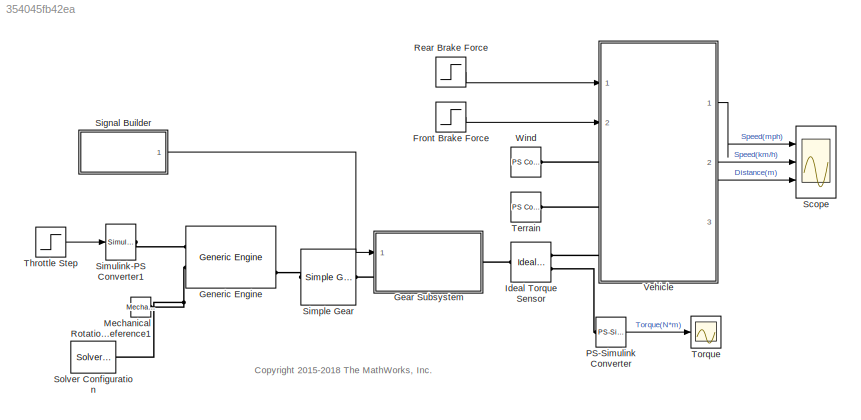
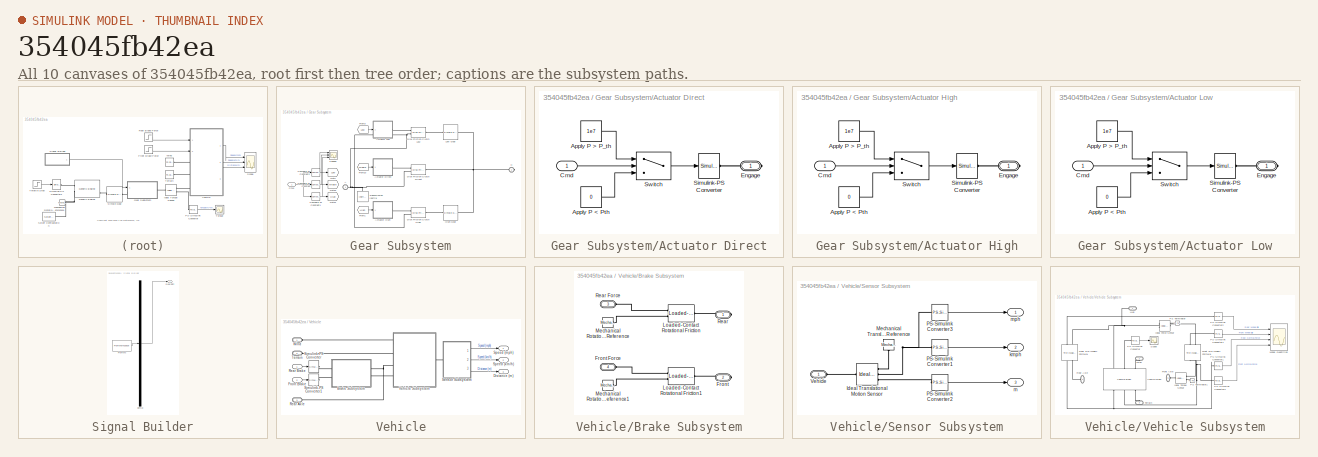
[diagram: thumbnail index - all 10 canvases of the model, root first then tree order]
MODEL slx_354045fb42ea
KIND model
CONFIG AbsTol = 1e-3
CONFIG EnableMultiTasking = on
CONFIG FixedStep = auto
CONFIG MaxStep = auto
CONFIG MinStep = auto
CONFIG PreLoadFcn = car_tire_data\nload engine_data
CONFIG RelTol = 1e-3
CONFIG SampleTimeConstraint = Unconstrained
CONFIG Solver = ode23t
CONFIG SolverName = ode23t
CONFIG StartTime = 0.0
CONFIG StopTime = 100
BLOCK [Step] Front Brake Force
  After = 1000
  AttributesFormatString = %<After> N at %<Time> s
  SampleTime = 0
  Time = 75
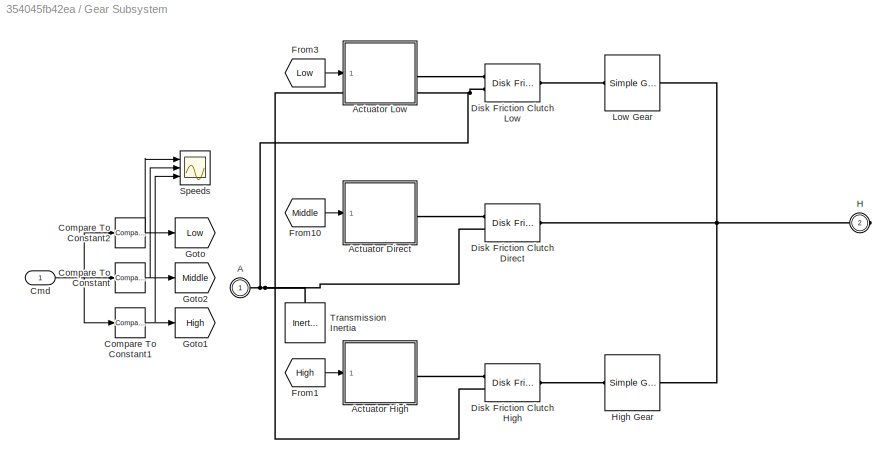
BLOCK [SubSystem] Gear Subsystem
  Ports = [1, 0, 0, 0, 0, 1, 1]
  RequestExecContextInheritance = off
  Variant = off
BLOCK [PMIOPort] Gear Subsystem/A
  Port = 1
  Side = Left
BLOCK [SubSystem] Gear Subsystem/Actuator Direct
  Ports = [1, 0, 0, 0, 0, 0, 1]
  RequestExecContextInheritance = off
  Variant = off
BLOCK [Constant] Gear Subsystem/Actuator Direct/Apply P < Pth
  Value = 0
BLOCK [Constant] Gear Subsystem/Actuator Direct/Apply P > P_th
  Value = 1e7
BLOCK [Inport] Gear Subsystem/Actuator Direct/Cmd
  IconDisplay = Port number
BLOCK [PMIOPort] Gear Subsystem/Actuator Direct/Engage
  Port = 1
  Side = Right
BLOCK [Reference] Gear Subsystem/Actuator Direct/Simulink-PS Converter  REF=nesl_utility/Simulink-PS
Converter
  Ports = [1, 0, 0, 0, 0, 0, 1]
  SourceBlock = nesl_utility/Simulink-PS\nConverter
  SourceProductBaseCode = SS
  SourceProductName = Simscape
  SourceType = Simulink-PS\nConverter
BLOCK [Switch] Gear Subsystem/Actuator Direct/Switch
  Criteria = u2 > Threshold
  InputSameDT = off
  SaturateOnIntegerOverflow = off
BLOCK [SubSystem] Gear Subsystem/Actuator High
  Ports = [1, 0, 0, 0, 0, 0, 1]
  RequestExecContextInheritance = off
  Variant = off
BLOCK [Constant] Gear Subsystem/Actuator High/Apply P < Pth
  Value = 0
BLOCK [Constant] Gear Subsystem/Actuator High/Apply P > P_th
  Value = 1e7
BLOCK [Inport] Gear Subsystem/Actuator High/Cmd
  IconDisplay = Port number
BLOCK [PMIOPort] Gear Subsystem/Actuator High/Engage
  Port = 1
  Side = Right
BLOCK [Reference] Gear Subsystem/Actuator High/Simulink-PS Converter  REF=nesl_utility/Simulink-PS
Converter
  Ports = [1, 0, 0, 0, 0, 0, 1]
  SourceBlock = nesl_utility/Simulink-PS\nConverter
  SourceProductBaseCode = SS
  SourceProductName = Simscape
  SourceType = Simulink-PS\nConverter
BLOCK [Switch] Gear Subsystem/Actuator High/Switch
  Criteria = u2 > Threshold
  InputSameDT = off
  SaturateOnIntegerOverflow = off
BLOCK [SubSystem] Gear Subsystem/Actuator Low
  Ports = [1, 0, 0, 0, 0, 0, 1]
  RequestExecContextInheritance = off
  Variant = off
BLOCK [Constant] Gear Subsystem/Actuator Low/Apply P < Pth
  Value = 0
BLOCK [Constant] Gear Subsystem/Actuator Low/Apply P > P_th
  Value = 1e7
BLOCK [Inport] Gear Subsystem/Actuator Low/Cmd
  IconDisplay = Port number
BLOCK [PMIOPort] Gear Subsystem/Actuator Low/Engage
  Port = 1
  Side = Right
BLOCK [Reference] Gear Subsystem/Actuator Low/Simulink-PS Converter  REF=nesl_utility/Simulink-PS
Converter
  Ports = [1, 0, 0, 0, 0, 0, 1]
  SourceBlock = nesl_utility/Simulink-PS\nConverter
  SourceProductBaseCode = SS
  SourceProductName = Simscape
  SourceType = Simulink-PS\nConverter
BLOCK [Switch] Gear Subsystem/Actuator Low/Switch
  Criteria = u2 > Threshold
  InputSameDT = off
  SaturateOnIntegerOverflow = off
BLOCK [Inport] Gear Subsystem/Cmd
  IconDisplay = Port number
BLOCK [Reference] Gear Subsystem/Compare To Constant  REF=simulink/Logic and Bit
Operations/Compare
To Constant
  Ports = [1, 1]
  SourceBlock = simulink/Logic and Bit\nOperations/Compare\nTo Constant
  SourceProductBaseCode = SL
  SourceProductName = Simulink
  SourceType = Compare To Constant
BLOCK [Reference] Gear Subsystem/Compare To Constant1  REF=simulink/Logic and Bit
Operations/Compare
To Constant
  Ports = [1, 1]
  SourceBlock = simulink/Logic and Bit\nOperations/Compare\nTo Constant
  SourceProductBaseCode = SL
  SourceProductName = Simulink
  SourceType = Compare To Constant
BLOCK [Reference] Gear Subsystem/Compare To Constant2  REF=simulink/Logic and Bit
Operations/Compare
To Constant
  Ports = [1, 1]
  SourceBlock = simulink/Logic and Bit\nOperations/Compare\nTo Constant
  SourceProductBaseCode = SL
  SourceProductName = Simulink
  SourceType = Compare To Constant
BLOCK [Reference] Gear Subsystem/Disk Friction Clutch Direct  REF=sdl_lib/Clutches/Disk Friction Clutch
  Ports = [0, 0, 0, 0, 0, 2, 1]
  SourceBlock = sdl_lib/Clutches/Disk Friction Clutch
  SourceProductBaseCode = LD
  SourceProductName = Simscape Driveline
  SourceType = Disk Friction Clutch
BLOCK [Reference] Gear Subsystem/Disk Friction Clutch High  REF=sdl_lib/Clutches/Disk Friction Clutch
  Ports = [0, 0, 0, 0, 0, 2, 1]
  SourceBlock = sdl_lib/Clutches/Disk Friction Clutch
  SourceProductBaseCode = LD
  SourceProductName = Simscape Driveline
  SourceType = Disk Friction Clutch
BLOCK [Reference] Gear Subsystem/Disk Friction Clutch Low  REF=sdl_lib/Clutches/Disk Friction Clutch
  Ports = [0, 0, 0, 0, 0, 2, 1]
  SourceBlock = sdl_lib/Clutches/Disk Friction Clutch
  SourceProductBaseCode = LD
  SourceProductName = Simscape Driveline
  SourceType = Disk Friction Clutch
BLOCK [From] Gear Subsystem/From1
  GotoTag = High
BLOCK [From] Gear Subsystem/From10
  GotoTag = Middle
BLOCK [From] Gear Subsystem/From3
  GotoTag = Low
BLOCK [Goto] Gear Subsystem/Goto
  GotoTag = Low
BLOCK [Goto] Gear Subsystem/Goto1
  GotoTag = High
BLOCK [Goto] Gear Subsystem/Goto2
  GotoTag = Middle
BLOCK [PMIOPort] Gear Subsystem/H
  Port = 2
  Side = Right
BLOCK [Reference] Gear Subsystem/High Gear  REF=sdl_lib/Gears/Simple Gear
  Ports = [0, 0, 0, 0, 0, 1, 1]
  SourceBlock = sdl_lib/Gears/Simple Gear
  SourceProductBaseCode = LD
  SourceProductName = Simscape Driveline
  SourceType = Simple Gear
BLOCK [Reference] Gear Subsystem/Low Gear  REF=sdl_lib/Gears/Simple Gear
  Ports = [0, 0, 0, 0, 0, 1, 1]
  SourceBlock = sdl_lib/Gears/Simple Gear
  SourceProductBaseCode = LD
  SourceProductName = Simscape Driveline
  SourceType = Simple Gear
BLOCK [Scope] Gear Subsystem/Speeds
  NumInputPorts = 3
  Ports = [3]
  ScopeSpecificationString = C++SS(StrPVP('Location','[10, 60, 1930, 1158]'),StrPVP('Open','off'),StrPVP('ZoomMode','xonly'),MxPVP('AxesTitles',53,'struct(''axes1'',''%<SignalLabel>'',''axes2'',''%<SignalLabel>'',''axes3'',''%<SignalLabel>'')'),MxPVP('ScopeGraphics',56,'struct(''FigureColor'',''[0.5 0.5 0.5]'',''AxesColor'',''[0 0 0]'',''AxesTickColor'',''[1 1 1]'',''LineColors'',''[1 1 0;1 0 1;0 1 1;1 0 0;0 1 0;0 0 1]'',''Li...<+381ch>
BLOCK [Reference] Gear Subsystem/Transmission Inertia  REF=fl_lib/Mechanical/Rotational Elements/Inertia
  Ports = [0, 0, 0, 0, 0, 1]
  SourceBlock = fl_lib/Mechanical/Rotational Elements/Inertia
  SourceProductBaseCode = SS
  SourceProductName = Simscape
  SourceType = Inertia
BLOCK [Reference] Generic Engine  REF=sdl_lib/Engines/Generic Engine
  Ports = [0, 0, 0, 0, 0, 2, 3]
  SourceBlock = sdl_lib/Engines/Generic Engine
  SourceProductBaseCode = LD
  SourceProductName = Simscape Driveline
  SourceType = Generic Engine
BLOCK [Reference] Ideal Torque Sensor  REF=fl_lib/Mechanical/Mechanical Sensors/Ideal Torque Sensor
  Ports = [0, 0, 0, 0, 0, 1, 2]
  SourceBlock = fl_lib/Mechanical/Mechanical Sensors/Ideal Torque Sensor
  SourceProductBaseCode = SS
  SourceProductName = Simscape
  SourceType = Ideal Torque Sensor
BLOCK [Reference] Mechanical Rotational Reference1  REF=fl_lib/Mechanical/Rotational Elements/Mechanical
Rotational Reference
  Ports = [0, 0, 0, 0, 0, 1]
  SourceBlock = fl_lib/Mechanical/Rotational Elements/Mechanical\nRotational Reference
  SourceProductBaseCode = SS
  SourceProductName = Simscape
  SourceType = Mechanical\nRotational Reference
BLOCK [Reference] PS-Simulink Converter  REF=nesl_utility/PS-Simulink
Converter
  Ports = [0, 1, 0, 0, 0, 1]
  SourceBlock = nesl_utility/PS-Simulink\nConverter
  SourceProductBaseCode = SS
  SourceProductName = Simscape
  SourceType = PS-Simulink\nConverter
BLOCK [Step] Rear Brake Force
  After = 500
  AttributesFormatString = %<After> N at %<Time> s
  SampleTime = 0
  Time = 50
BLOCK [Scope] Scope
  NumInputPorts = 3
  Ports = [3]
  ScopeSpecificationString = C++SS(StrPVP('Location','[590, 68, 1281, 660]'),StrPVP('Open','off'),MxPVP('AxesTitles',53,'struct(''axes1'',''%<SignalLabel>'',''axes2'',''%<SignalLabel>'',''axes3'',''%<SignalLabel>'')'),MxPVP('ScopeGraphics',56,'struct(''FigureColor'',''[0.5 0.5 0.5]'',''AxesColor'',''[0 0 0]'',''AxesTickColor'',''[1 1 1]'',''LineColors'',''[1 1 0;1 0 1;0 1 1;1 0 0;0 1 0;0 0 1]'',''LineStyles'',''-|-|-|-|-|-'',...<+304ch>
BLOCK [SubSystem] Signal Builder
  ClipboardFcn = sigbuilder_block('clipboard');
  CloseFcn = sigbuilder_block('close');
  ContinueFcn = sigbuilder_block('continue');
  CopyFcn = sigbuilder_block('copy');
  DeleteFcn = sigbuilder_block('delete');
  LoadFcn = sigbuilder_block('load');
  MaskHideContents = on
  ModelCloseFcn = sigbuilder_block('modelClose');
  NameChangeFcn = sigbuilder_block('namechange');
  OpenFcn = sigbuilder_block('open',[306 225.75 549.75 399.75 ]);
  PauseFcn = sigbuilder_block('pause');
  Ports = [0, 1]
  PreSaveFcn = sigbuilder_block('preSave');
  RequestExecContextInheritance = off
  StartFcn = sigbuilder_block('start');
  StopFcn = sigbuilder_block('stop');
  Tag = STV Subsys
  Variant = off
BLOCK [Demux] Signal Builder/Demux
  Outputs = 1
  Ports = [1, 1]
  Tag = STV Demux
BLOCK [FromWorkspace] Signal Builder/FromWs
  SampleTime = 0
  Tag = STV FromWs
  VariableName = tuvar
  ZeroCross = on
BLOCK [Outport] Signal Builder/GearShift
  IconDisplay = Port number
  Tag = STV Outport
BLOCK [Reference] Simple Gear  REF=sdl_lib/Gears/Simple Gear
  Ports = [0, 0, 0, 0, 0, 1, 1]
  SourceBlock = sdl_lib/Gears/Simple Gear
  SourceProductBaseCode = LD
  SourceProductName = Simscape Driveline
  SourceType = Simple Gear
BLOCK [Reference] Simulink-PS Converter1  REF=nesl_utility/Simulink-PS
Converter
  Ports = [1, 0, 0, 0, 0, 0, 1]
  SourceBlock = nesl_utility/Simulink-PS\nConverter
  SourceProductBaseCode = SS
  SourceProductName = Simscape
  SourceType = Simulink-PS\nConverter
BLOCK [Reference] Solver Configuration  REF=nesl_utility/Solver
Configuration
  Ports = [0, 0, 0, 0, 0, 0, 1]
  SourceBlock = nesl_utility/Solver\nConfiguration
  SourceProductBaseCode = SS
  SourceProductName = Simscape
  SourceType = Solver\nConfiguration
BLOCK [Reference] Terrain  REF=fl_lib/Physical Signals/Sources/PS Constant
  Ports = [0, 0, 0, 0, 0, 0, 1]
  SourceBlock = fl_lib/Physical Signals/Sources/PS Constant
  SourceProductBaseCode = SS
  SourceProductName = Simscape
  SourceType = PS Constant
BLOCK [Step] Throttle Step
  After = 0.4
  AttributesFormatString = %<Before> to %<After> at %<Time>s
  Before = 0.15
  SampleTime = 0
  Time = 20
BLOCK [Scope] Torque
  NumInputPorts = 1
  Ports = [1]
  ScopeSpecificationString = C++SS(StrPVP('Location','[30, 192, 514, 540]'),StrPVP('Open','off'),StrPVP('ZoomMode','yonly'),MxPVP('AxesTitles',53,'struct(''axes1'',''%<SignalLabel>'')'),MxPVP('ScopeGraphics',56,'struct(''FigureColor'',''[0.5 0.5 0.5]'',''AxesColor'',''[0 0 0]'',''AxesTickColor'',''[1 1 1]'',''LineColors'',''[1 1 0;1 0 1;0 1 1;1 0 0;0 1 0;0 0 1]'',''LineStyles'',''-|-|-|-|-|-'',''LineWidths'',''[0.5 0.5 0.5 0....<+335ch>
BLOCK [SubSystem] Vehicle
  Ports = [2, 3, 0, 0, 0, 3]
  RequestExecContextInheritance = off
  Variant = off
BLOCK [SubSystem] Vehicle/Brake Subsystem
  Ports = [0, 0, 0, 0, 0, 2, 2]
  RequestExecContextInheritance = off
  Variant = off
BLOCK [PMIOPort] Vehicle/Brake Subsystem/Front
  Port = 2
  Side = Right
BLOCK [PMIOPort] Vehicle/Brake Subsystem/Front Force
  Port = 4
  Side = Left
BLOCK [Reference] Vehicle/Brake Subsystem/Loaded-Contact Rotational Friction  REF=sdl_lib/Brakes & Detents/Rotational/Loaded-Contact
Rotational Friction
  Ports = [0, 0, 0, 0, 0, 2, 1]
  SourceBlock = sdl_lib/Brakes & Detents/Rotational/Loaded-Contact\nRotational Friction
  SourceProductBaseCode = LD
  SourceProductName = Simscape Driveline
  SourceType = Loaded-Contact\nRotational Friction
BLOCK [Reference] Vehicle/Brake Subsystem/Loaded-Contact Rotational Friction1  REF=sdl_lib/Brakes & Detents/Rotational/Loaded-Contact
Rotational Friction
  Ports = [0, 0, 0, 0, 0, 2, 1]
  SourceBlock = sdl_lib/Brakes & Detents/Rotational/Loaded-Contact\nRotational Friction
  SourceProductBaseCode = LD
  SourceProductName = Simscape Driveline
  SourceType = Loaded-Contact\nRotational Friction
BLOCK [Reference] Vehicle/Brake Subsystem/Mechanical Rotational Reference  REF=fl_lib/Mechanical/Rotational Elements/Mechanical
Rotational Reference
  Ports = [0, 0, 0, 0, 0, 1]
  SourceBlock = fl_lib/Mechanical/Rotational Elements/Mechanical\nRotational Reference
  SourceProductBaseCode = SS
  SourceProductName = Simscape
  SourceType = Mechanical\nRotational Reference
BLOCK [Reference] Vehicle/Brake Subsystem/Mechanical Rotational Reference1  REF=fl_lib/Mechanical/Rotational Elements/Mechanical
Rotational Reference
  Ports = [0, 0, 0, 0, 0, 1]
  SourceBlock = fl_lib/Mechanical/Rotational Elements/Mechanical\nRotational Reference
  SourceProductBaseCode = SS
  SourceProductName = Simscape
  SourceType = Mechanical\nRotational Reference
BLOCK [PMIOPort] Vehicle/Brake Subsystem/Rear
  Port = 1
  Side = Right
BLOCK [PMIOPort] Vehicle/Brake Subsystem/Rear Force
  Port = 3
  Side = Left
BLOCK [Outport] Vehicle/Distance (m)
  IconDisplay = Port number
  Port = 3
BLOCK [Inport] Vehicle/Front Brake
  IconDisplay = Port number
  Port = 2
BLOCK [PMIOPort] Vehicle/Rear Axle
  Port = 3
  Side = Left
BLOCK [Inport] Vehicle/Rear Brake
  IconDisplay = Port number
BLOCK [SubSystem] Vehicle/Sensor Subsystem
  Ports = [0, 3, 0, 0, 0, 1]
  RequestExecContextInheritance = off
  Variant = off
BLOCK [Reference] Vehicle/Sensor Subsystem/Ideal Translational Motion Sensor  REF=fl_lib/Mechanical/Mechanical Sensors/Ideal Translational
Motion Sensor
  Ports = [0, 0, 0, 0, 0, 1, 3]
  SourceBlock = fl_lib/Mechanical/Mechanical Sensors/Ideal Translational\nMotion Sensor
  SourceProductBaseCode = SS
  SourceProductName = Simscape
  SourceType = Ideal Translational\nMotion Sensor
BLOCK [Reference] Vehicle/Sensor Subsystem/Mechanical Translational Reference  REF=fl_lib/Mechanical/Translational
Elements/Mechanical
Translational
Reference
  Ports = [0, 0, 0, 0, 0, 1]
  SourceBlock = fl_lib/Mechanical/Translational\nElements/Mechanical\nTranslational\nReference
  SourceProductBaseCode = SS
  SourceProductName = Simscape
  SourceType = Mechanical\nTranslational\nReference
BLOCK [Reference] Vehicle/Sensor Subsystem/PS-Simulink Converter1  REF=nesl_utility/PS-Simulink
Converter
  Ports = [0, 1, 0, 0, 0, 1]
  SourceBlock = nesl_utility/PS-Simulink\nConverter
  SourceProductBaseCode = SS
  SourceProductName = Simscape
  SourceType = PS-Simulink\nConverter
BLOCK [Reference] Vehicle/Sensor Subsystem/PS-Simulink Converter2  REF=nesl_utility/PS-Simulink
Converter
  Ports = [0, 1, 0, 0, 0, 1]
  SourceBlock = nesl_utility/PS-Simulink\nConverter
  SourceProductBaseCode = SS
  SourceProductName = Simscape
  SourceType = PS-Simulink\nConverter
BLOCK [Reference] Vehicle/Sensor Subsystem/PS-Simulink Converter3  REF=nesl_utility/PS-Simulink
Converter
  Ports = [0, 1, 0, 0, 0, 1]
  SourceBlock = nesl_utility/PS-Simulink\nConverter
  SourceProductBaseCode = SS
  SourceProductName = Simscape
  SourceType = PS-Simulink\nConverter
BLOCK [PMIOPort] Vehicle/Sensor Subsystem/Vehicle
  Port = 1
  Side = Left
BLOCK [Outport] Vehicle/Sensor Subsystem/kmph
  IconDisplay = Port number
  Port = 2
BLOCK [Outport] Vehicle/Sensor Subsystem/m
  IconDisplay = Port number
  Port = 3
BLOCK [Outport] Vehicle/Sensor Subsystem/mph
  IconDisplay = Port number
BLOCK [Reference] Vehicle/Simulink-PS Converter  REF=nesl_utility/Simulink-PS
Converter
  Ports = [1, 0, 0, 0, 0, 0, 1]
  SourceBlock = nesl_utility/Simulink-PS\nConverter
  SourceProductBaseCode = SS
  SourceProductName = Simscape
  SourceType = Simulink-PS\nConverter
BLOCK [Reference] Vehicle/Simulink-PS Converter1  REF=nesl_utility/Simulink-PS
Converter
  Ports = [1, 0, 0, 0, 0, 0, 1]
  SourceBlock = nesl_utility/Simulink-PS\nConverter
  SourceProductBaseCode = SS
  SourceProductName = Simscape
  SourceType = Simulink-PS\nConverter
BLOCK [Outport] Vehicle/Speed (km//h)
  IconDisplay = Port number
  Port = 2
BLOCK [Outport] Vehicle/Speed (mph)
  IconDisplay = Port number
BLOCK [PMIOPort] Vehicle/Terrain
  Port = 2
  Side = Left
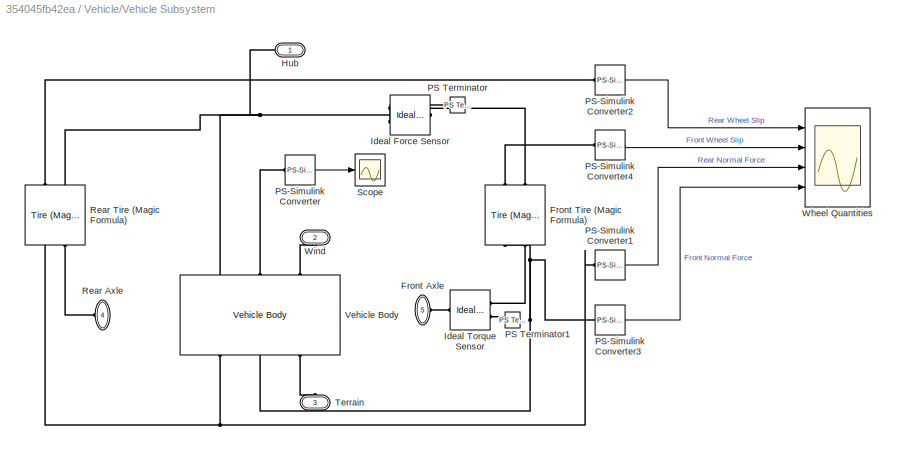
BLOCK [SubSystem] Vehicle/Vehicle Subsystem
  Ports = [0, 0, 0, 0, 0, 4, 1]
  RequestExecContextInheritance = off
  Variant = off
BLOCK [PMIOPort] Vehicle/Vehicle Subsystem/Front Axle
  Port = 5
  Side = Left
BLOCK [Reference] Vehicle/Vehicle Subsystem/Front Tire (Magic Formula)  REF=sdl_lib/Tires & Vehicles/Tire (Magic Formula)
  Ports = [0, 0, 0, 0, 0, 2, 2]
  SourceBlock = sdl_lib/Tires & Vehicles/Tire (Magic Formula)
  SourceProductBaseCode = LD
  SourceProductName = Simscape Driveline
  SourceType = Tire (Magic Formula)
BLOCK [PMIOPort] Vehicle/Vehicle Subsystem/Hub
  Port = 1
  Side = Right
BLOCK [Reference] Vehicle/Vehicle Subsystem/Ideal Force Sensor  REF=fl_lib/Mechanical/Mechanical Sensors/Ideal Force Sensor
  Ports = [0, 0, 0, 0, 0, 1, 2]
  SourceBlock = fl_lib/Mechanical/Mechanical Sensors/Ideal Force Sensor
  SourceProductBaseCode = SS
  SourceProductName = Simscape
  SourceType = Ideal Force Sensor
BLOCK [Reference] Vehicle/Vehicle Subsystem/Ideal Torque Sensor  REF=fl_lib/Mechanical/Mechanical Sensors/Ideal Torque Sensor
  Ports = [0, 0, 0, 0, 0, 1, 2]
  SourceBlock = fl_lib/Mechanical/Mechanical Sensors/Ideal Torque Sensor
  SourceProductBaseCode = SS
  SourceProductName = Simscape
  SourceType = Ideal Torque Sensor
BLOCK [Reference] Vehicle/Vehicle Subsystem/PS Terminator  REF=fl_lib/Physical Signals/Sinks/PS Terminator
  Ports = [0, 0, 0, 0, 0, 1]
  SourceBlock = fl_lib/Physical Signals/Sinks/PS Terminator
  SourceProductBaseCode = SS
  SourceProductName = Simscape
  SourceType = PS Terminator
BLOCK [Reference] Vehicle/Vehicle Subsystem/PS Terminator1  REF=fl_lib/Physical Signals/Sinks/PS Terminator
  Ports = [0, 0, 0, 0, 0, 1]
  SourceBlock = fl_lib/Physical Signals/Sinks/PS Terminator
  SourceProductBaseCode = SS
  SourceProductName = Simscape
  SourceType = PS Terminator
BLOCK [Reference] Vehicle/Vehicle Subsystem/PS-Simulink Converter  REF=nesl_utility/PS-Simulink
Converter
  Ports = [0, 1, 0, 0, 0, 1]
  SourceBlock = nesl_utility/PS-Simulink\nConverter
  SourceProductBaseCode = SS
  SourceProductName = Simscape
  SourceType = PS-Simulink\nConverter
BLOCK [Reference] Vehicle/Vehicle Subsystem/PS-Simulink Converter1  REF=nesl_utility/PS-Simulink
Converter
  Ports = [0, 1, 0, 0, 0, 1]
  SourceBlock = nesl_utility/PS-Simulink\nConverter
  SourceProductBaseCode = SS
  SourceProductName = Simscape
  SourceType = PS-Simulink\nConverter
BLOCK [Reference] Vehicle/Vehicle Subsystem/PS-Simulink Converter2  REF=nesl_utility/PS-Simulink
Converter
  Ports = [0, 1, 0, 0, 0, 1]
  SourceBlock = nesl_utility/PS-Simulink\nConverter
  SourceProductBaseCode = SS
  SourceProductName = Simscape
  SourceType = PS-Simulink\nConverter
BLOCK [Reference] Vehicle/Vehicle Subsystem/PS-Simulink Converter3  REF=nesl_utility/PS-Simulink
Converter
  Ports = [0, 1, 0, 0, 0, 1]
  SourceBlock = nesl_utility/PS-Simulink\nConverter
  SourceProductBaseCode = SS
  SourceProductName = Simscape
  SourceType = PS-Simulink\nConverter
BLOCK [Reference] Vehicle/Vehicle Subsystem/PS-Simulink Converter4  REF=nesl_utility/PS-Simulink
Converter
  Ports = [0, 1, 0, 0, 0, 1]
  SourceBlock = nesl_utility/PS-Simulink\nConverter
  SourceProductBaseCode = SS
  SourceProductName = Simscape
  SourceType = PS-Simulink\nConverter
BLOCK [PMIOPort] Vehicle/Vehicle Subsystem/Rear Axle
  Port = 4
  Side = Left
BLOCK [Reference] Vehicle/Vehicle Subsystem/Rear Tire (Magic Formula)  REF=sdl_lib/Tires & Vehicles/Tire (Magic Formula)
  Ports = [0, 0, 0, 0, 0, 2, 2]
  SourceBlock = sdl_lib/Tires & Vehicles/Tire (Magic Formula)
  SourceProductBaseCode = LD
  SourceProductName = Simscape Driveline
  SourceType = Tire (Magic Formula)
BLOCK [Scope] Vehicle/Vehicle Subsystem/Scope
  NumInputPorts = 1
  Ports = [1]
  ScopeSpecificationString = C++SS(StrPVP('Location','[188, 365, 512, 604]'),StrPVP('Open','off'),MxPVP('AxesTitles',53,'struct(''axes1'',''%<SignalLabel>'')'),MxPVP('ScopeGraphics',56,'struct(''FigureColor'',''[0.5 0.5 0.5]'',''AxesColor'',''[0 0 0]'',''AxesTickColor'',''[1 1 1]'',''LineColors'',''[1 1 0;1 0 1;0 1 1;1 0 0;0 1 0;0 0 1]'',''LineStyles'',''-|-|-|-|-|-'',''LineWidths'',''[0.5 0.5 0.5 0.5 0.5 0.5]'',''MarkerStyle...<+164ch>
BLOCK [PMIOPort] Vehicle/Vehicle Subsystem/Terrain
  Port = 3
  Side = Left
BLOCK [Reference] Vehicle/Vehicle Subsystem/Vehicle Body  REF=sdl_lib/Tires & Vehicles/Vehicle Body
  Ports = [0, 0, 0, 0, 0, 3, 3]
  SourceBlock = sdl_lib/Tires & Vehicles/Vehicle Body
  SourceProductBaseCode = LD
  SourceProductName = Simscape Driveline
  SourceType = Vehicle Body
BLOCK [Scope] Vehicle/Vehicle Subsystem/Wheel Quantities
  NumInputPorts = 4
  Ports = [4]
  ScopeSpecificationString = C++SS(StrPVP('Location','[42, 106, 573, 628]'),StrPVP('Open','off'),StrPVP('ZoomMode','xonly'),MxPVP('AxesTitles',53,'struct(''axes1'',''%<SignalLabel>'',''axes2'',''%<SignalLabel>'',''axes3'',''%<SignalLabel>'',''axes4'',''%<SignalLabel>'')'),MxPVP('ScopeGraphics',56,'struct(''FigureColor'',''[0.5 0.5 0.5]'',''AxesColor'',''[0 0 0]'',''AxesTickColor'',''[1 1 1]'',''LineColors'',''[1 1 0;1 0 1;0 1...<+568ch>
BLOCK [PMIOPort] Vehicle/Vehicle Subsystem/Wind
  Port = 2
  Side = Left
BLOCK [PMIOPort] Vehicle/Wind
  Port = 1
  Side = Left
BLOCK [Reference] Wind  REF=fl_lib/Physical Signals/Sources/PS Constant
  Ports = [0, 0, 0, 0, 0, 0, 1]
  SourceBlock = fl_lib/Physical Signals/Sources/PS Constant
  SourceProductBaseCode = SS
  SourceProductName = Simscape
  SourceType = PS Constant
ANNOTATION (root): <copyright redacted>
LINE Front Brake Force:1 -> Vehicle:2
LINE Gear Subsystem/Actuator Direct/Apply P < Pth:1 -> Gear Subsystem/Actuator Direct/Switch:3
LINE Gear Subsystem/Actuator Direct/Apply P > P_th:1 -> Gear Subsystem/Actuator Direct/Switch:1
LINE Gear Subsystem/Actuator Direct/Cmd:1 -> Gear Subsystem/Actuator Direct/Switch:2
LINE Gear Subsystem/Actuator Direct/Switch:1 -> Gear Subsystem/Actuator Direct/Simulink-PS Converter:1
LINE Gear Subsystem/Actuator High/Apply P < Pth:1 -> Gear Subsystem/Actuator High/Switch:3
LINE Gear Subsystem/Actuator High/Apply P > P_th:1 -> Gear Subsystem/Actuator High/Switch:1
LINE Gear Subsystem/Actuator High/Cmd:1 -> Gear Subsystem/Actuator High/Switch:2
LINE Gear Subsystem/Actuator High/Switch:1 -> Gear Subsystem/Actuator High/Simulink-PS Converter:1
LINE Gear Subsystem/Actuator Low/Apply P < Pth:1 -> Gear Subsystem/Actuator Low/Switch:3
LINE Gear Subsystem/Actuator Low/Apply P > P_th:1 -> Gear Subsystem/Actuator Low/Switch:1
LINE Gear Subsystem/Actuator Low/Cmd:1 -> Gear Subsystem/Actuator Low/Switch:2
LINE Gear Subsystem/Actuator Low/Switch:1 -> Gear Subsystem/Actuator Low/Simulink-PS Converter:1
NET Gear Subsystem/Cmd:1 -> Gear Subsystem/Compare To Constant1:1, Gear Subsystem/Compare To Constant2:1, Gear Subsystem/Compare To Constant:1
NET Gear Subsystem/Compare To Constant1:1 -> Gear Subsystem/Goto1:1, Gear Subsystem/Speeds:3
NET Gear Subsystem/Compare To Constant2:1 -> Gear Subsystem/Goto:1, Gear Subsystem/Speeds:1
NET Gear Subsystem/Compare To Constant:1 -> Gear Subsystem/Goto2:1, Gear Subsystem/Speeds:2
LINE Gear Subsystem/From10:1 -> Gear Subsystem/Actuator Direct:1
LINE Gear Subsystem/From1:1 -> Gear Subsystem/Actuator High:1
LINE Gear Subsystem/From3:1 -> Gear Subsystem/Actuator Low:1
LINE PS-Simulink Converter:1 -> Torque:1
LINE Rear Brake Force:1 -> Vehicle:1
LINE Signal Builder:1 -> Gear Subsystem:1
LINE Throttle Step:1 -> Simulink-PS Converter1:1
LINE Vehicle/Front Brake:1 -> Vehicle/Simulink-PS Converter1:1
LINE Vehicle/Rear Brake:1 -> Vehicle/Simulink-PS Converter:1
LINE Vehicle/Sensor Subsystem/PS-Simulink Converter1:1 -> Vehicle/Sensor Subsystem/kmph:1
LINE Vehicle/Sensor Subsystem/PS-Simulink Converter2:1 -> Vehicle/Sensor Subsystem/m:1
LINE Vehicle/Sensor Subsystem/PS-Simulink Converter3:1 -> Vehicle/Sensor Subsystem/mph:1
LINE Vehicle/Sensor Subsystem:1 -> Vehicle/Speed (mph):1
LINE Vehicle/Sensor Subsystem:2 -> Vehicle/Speed (km//h):1
LINE Vehicle/Sensor Subsystem:3 -> Vehicle/Distance (m):1
LINE Vehicle/Vehicle Subsystem/PS-Simulink Converter1:1 -> Vehicle/Vehicle Subsystem/Wheel Quantities:3
LINE Vehicle/Vehicle Subsystem/PS-Simulink Converter2:1 -> Vehicle/Vehicle Subsystem/Wheel Quantities:1
LINE Vehicle/Vehicle Subsystem/PS-Simulink Converter3:1 -> Vehicle/Vehicle Subsystem/Wheel Quantities:4
LINE Vehicle/Vehicle Subsystem/PS-Simulink Converter4:1 -> Vehicle/Vehicle Subsystem/Wheel Quantities:2
LINE Vehicle/Vehicle Subsystem/PS-Simulink Converter:1 -> Vehicle/Vehicle Subsystem/Scope:1
LINE Vehicle:1 -> Scope:1
LINE Vehicle:2 -> Scope:2
LINE Vehicle:3 -> Scope:3
PNET net1: Gear Subsystem/A:RConn1 -- Gear Subsystem/Disk Friction Clutch Direct:LConn2 -- Gear Subsystem/Disk Friction Clutch High:LConn2 -- Gear Subsystem/Disk Friction Clutch Low:LConn2 -- Gear Subsystem/Transmission Inertia:LConn1
PLINE Gear Subsystem/Actuator Direct/Engage:RConn1 -- Gear Subsystem/Actuator Direct/Simulink-PS Converter:RConn1
PLINE Gear Subsystem/Actuator Direct:RConn1 -- Gear Subsystem/Disk Friction Clutch Direct:LConn1
PLINE Gear Subsystem/Actuator High/Engage:RConn1 -- Gear Subsystem/Actuator High/Simulink-PS Converter:RConn1
PLINE Gear Subsystem/Actuator High:RConn1 -- Gear Subsystem/Disk Friction Clutch High:LConn1
PLINE Gear Subsystem/Actuator Low/Engage:RConn1 -- Gear Subsystem/Actuator Low/Simulink-PS Converter:RConn1
PLINE Gear Subsystem/Actuator Low:RConn1 -- Gear Subsystem/Disk Friction Clutch Low:LConn1
PNET net2: Gear Subsystem/Disk Friction Clutch Direct:RConn1 -- Gear Subsystem/H:RConn1 -- Gear Subsystem/High Gear:RConn1 -- Gear Subsystem/Low Gear:RConn1
PLINE Gear Subsystem/Disk Friction Clutch High:RConn1 -- Gear Subsystem/High Gear:LConn1
PLINE Gear Subsystem/Disk Friction Clutch Low:RConn1 -- Gear Subsystem/Low Gear:LConn1
PLINE Gear Subsystem:LConn1 -- Simple Gear:RConn1
PLINE Gear Subsystem:RConn1 -- Ideal Torque Sensor:LConn1
PLINE Generic Engine:LConn1 -- Simulink-PS Converter1:RConn1
PNET net3: Generic Engine:LConn2 -- Mechanical Rotational Reference1:LConn1 -- Solver Configuration:RConn1
PLINE Generic Engine:RConn3 -- Simple Gear:LConn1
PLINE Ideal Torque Sensor:RConn1 -- Vehicle:LConn3
PLINE Ideal Torque Sensor:RConn2 -- PS-Simulink Converter:LConn1
PLINE Terrain:RConn1 -- Vehicle:LConn2
PLINE Vehicle/Brake Subsystem/Front Force:RConn1 -- Vehicle/Brake Subsystem/Loaded-Contact Rotational Friction1:LConn1
PLINE Vehicle/Brake Subsystem/Front:RConn1 -- Vehicle/Brake Subsystem/Loaded-Contact Rotational Friction1:RConn1
PLINE Vehicle/Brake Subsystem/Loaded-Contact Rotational Friction1:LConn2 -- Vehicle/Brake Subsystem/Mechanical Rotational Reference1:LConn1
PLINE Vehicle/Brake Subsystem/Loaded-Contact Rotational Friction:LConn1 -- Vehicle/Brake Subsystem/Rear Force:RConn1
PLINE Vehicle/Brake Subsystem/Loaded-Contact Rotational Friction:LConn2 -- Vehicle/Brake Subsystem/Mechanical Rotational Reference:LConn1
PLINE Vehicle/Brake Subsystem/Loaded-Contact Rotational Friction:RConn1 -- Vehicle/Brake Subsystem/Rear:RConn1
PLINE Vehicle/Brake Subsystem:LConn1 -- Vehicle/Simulink-PS Converter:RConn1
PLINE Vehicle/Brake Subsystem:LConn2 -- Vehicle/Simulink-PS Converter1:RConn1
PNET net4: Vehicle/Brake Subsystem:RConn1 -- Vehicle/Rear Axle:RConn1 -- Vehicle/Vehicle Subsystem:LConn3
PLINE Vehicle/Brake Subsystem:RConn2 -- Vehicle/Vehicle Subsystem:LConn4
PLINE Vehicle/Sensor Subsystem/Ideal Translational Motion Sensor:LConn1 -- Vehicle/Sensor Subsystem/Vehicle:RConn1
PLINE Vehicle/Sensor Subsystem/Ideal Translational Motion Sensor:RConn1 -- Vehicle/Sensor Subsystem/Mechanical Translational Reference:LConn1
PNET net5: Vehicle/Sensor Subsystem/Ideal Translational Motion Sensor:RConn2 -- Vehicle/Sensor Subsystem/PS-Simulink Converter1:LConn1 -- Vehicle/Sensor Subsystem/PS-Simulink Converter3:LConn1
PLINE Vehicle/Sensor Subsystem/Ideal Translational Motion Sensor:RConn3 -- Vehicle/Sensor Subsystem/PS-Simulink Converter2:LConn1
PLINE Vehicle/Sensor Subsystem:LConn1 -- Vehicle/Vehicle Subsystem:RConn1
PLINE Vehicle/Terrain:RConn1 -- Vehicle/Vehicle Subsystem:LConn2
PLINE Vehicle/Vehicle Subsystem/Front Axle:RConn1 -- Vehicle/Vehicle Subsystem/Ideal Torque Sensor:LConn1
PNET net6: Vehicle/Vehicle Subsystem/Front Tire (Magic Formula):LConn1 -- Vehicle/Vehicle Subsystem/PS-Simulink Converter3:LConn1 -- Vehicle/Vehicle Subsystem/Vehicle Body:RConn2
PLINE Vehicle/Vehicle Subsystem/Front Tire (Magic Formula):LConn2 -- Vehicle/Vehicle Subsystem/Ideal Torque Sensor:RConn1
PLINE Vehicle/Vehicle Subsystem/Front Tire (Magic Formula):RConn1 -- Vehicle/Vehicle Subsystem/PS-Simulink Converter4:LConn1
PLINE Vehicle/Vehicle Subsystem/Front Tire (Magic Formula):RConn2 -- Vehicle/Vehicle Subsystem/Ideal Force Sensor:RConn1
PNET net7: Vehicle/Vehicle Subsystem/Hub:RConn1 -- Vehicle/Vehicle Subsystem/Ideal Force Sensor:LConn1 -- Vehicle/Vehicle Subsystem/Rear Tire (Magic Formula):RConn2 -- Vehicle/Vehicle Subsystem/Vehicle Body:LConn1
PLINE Vehicle/Vehicle Subsystem/Ideal Force Sensor:RConn2 -- Vehicle/Vehicle Subsystem/PS Terminator:LConn1
PLINE Vehicle/Vehicle Subsystem/Ideal Torque Sensor:RConn2 -- Vehicle/Vehicle Subsystem/PS Terminator1:LConn1
PNET net8: Vehicle/Vehicle Subsystem/PS-Simulink Converter1:LConn1 -- Vehicle/Vehicle Subsystem/Rear Tire (Magic Formula):LConn1 -- Vehicle/Vehicle Subsystem/Vehicle Body:RConn1
PLINE Vehicle/Vehicle Subsystem/PS-Simulink Converter2:LConn1 -- Vehicle/Vehicle Subsystem/Rear Tire (Magic Formula):RConn1
PLINE Vehicle/Vehicle Subsystem/PS-Simulink Converter:LConn1 -- Vehicle/Vehicle Subsystem/Vehicle Body:LConn2
PLINE Vehicle/Vehicle Subsystem/Rear Axle:RConn1 -- Vehicle/Vehicle Subsystem/Rear Tire (Magic Formula):LConn2
PLINE Vehicle/Vehicle Subsystem/Terrain:RConn1 -- Vehicle/Vehicle Subsystem/Vehicle Body:RConn3
PLINE Vehicle/Vehicle Subsystem/Vehicle Body:LConn3 -- Vehicle/Vehicle Subsystem/Wind:RConn1
PLINE Vehicle/Vehicle Subsystem:LConn1 -- Vehicle/Wind:RConn1
PLINE Vehicle:LConn1 -- Wind:RConn1
note: NET lines group one-source signal fan-out (src -> all destinations, sorted); 1:1 wires keep LINE; PNET lines group multi-terminal physical nets as a canonical sorted terminal list (undirected conserving connections); 2-terminal nets keep the pairwise PLINE form
